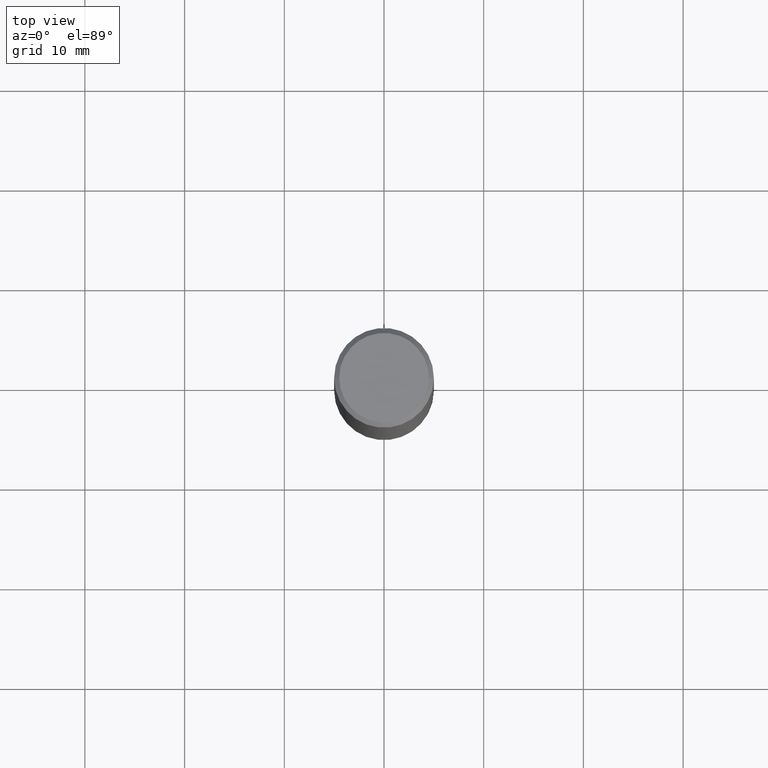
[diagram: clean part render]
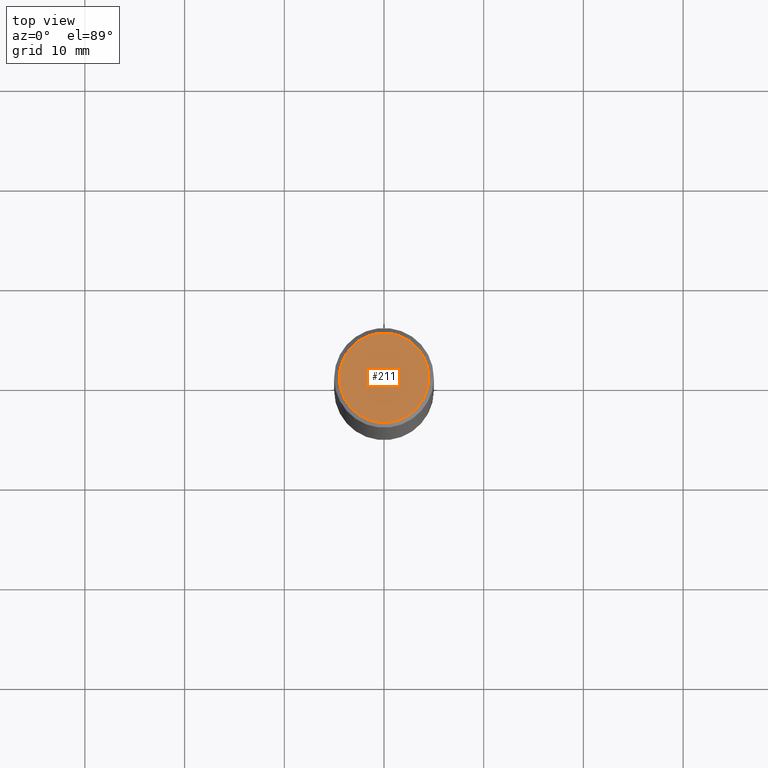
[diagram: same view with one face highlighted and labeled with its STEP entity id]
A machine part, top view. The second image highlights one B-rep face of the part: STEP entity #211.
In plain terms, the highlighted planar face has unit normal (0, -0, -1).
Its self-contained STEP definition (entity closure, byte-faithful):
#10 = ORIENTED_EDGE ( 'NONE', *, *, #32, .T. ) ;
#14 = CIRCLE ( 'NONE', #244, 0.1768499999999997019 ) ;
#25 = CARTESIAN_POINT ( 'NONE',  ( 0.1768499999999997019, -1.316798864272040366E-15, 8.537024980209745006E-18 ) ) ;
#32 = EDGE_CURVE ( 'NONE', #263, #168, #14, .T. ) ;
#42 = DIRECTION ( 'NONE',  ( 1.000000000000000000, -6.982962677686268288E-15, 4.875932113059886416E-29 ) ) ;
#70 = DIRECTION ( 'NONE',  ( -2.445468806185136597E-29, 3.491481338843145583E-15, 1.000000000000000000 ) ) ;
#75 = DIRECTION ( 'NONE',  ( 1.000000000000000000, -6.982962677686268288E-15, 4.875932113059886416E-29 ) ) ;
#101 = AXIS2_PLACEMENT_3D ( 'NONE', #223, #253, #330 ) ;
#106 = AXIS2_PLACEMENT_3D ( 'NONE', #364, #360, #75 ) ;
#108 = FACE_OUTER_BOUND ( 'NONE', #329, .T. ) ;
#118 = CIRCLE ( 'NONE', #106, 0.1768499999999997019 ) ;
#137 = PLANE ( 'NONE',  #101 ) ;
#168 = VERTEX_POINT ( 'NONE', #25 ) ;
#211 = ADVANCED_FACE ( 'NONE', ( #108 ), #137, .F. ) ;
#223 = CARTESIAN_POINT ( 'NONE',  ( 1.234936949548814026E-15, 0.1768499999999997019, -6.131999622843089528E-16 ) ) ;
#237 = ORIENTED_EDGE ( 'NONE', *, *, #287, .T. ) ;
#244 = AXIS2_PLACEMENT_3D ( 'NONE', #271, #70, #42 ) ;
#253 = DIRECTION ( 'NONE',  ( 2.438088387897960049E-29, -3.491481338843145188E-15, -1.000000000000000000 ) ) ;
#263 = VERTEX_POINT ( 'NONE', #363 ) ;
#271 = CARTESIAN_POINT ( 'NONE',  ( -2.087702828670439639E-46, 2.980686340760894400E-32, 8.537024980200822558E-18 ) ) ;
#287 = EDGE_CURVE ( 'NONE', #168, #263, #118, .T. ) ;
#329 = EDGE_LOOP ( 'NONE', ( #10, #237 ) ) ;
#330 = DIRECTION ( 'NONE',  ( -1.000000000000000000, 6.982962677686265922E-15, -4.876176775795935793E-29 ) ) ;
#360 = DIRECTION ( 'NONE',  ( -2.445468806185136597E-29, 3.491481338843145583E-15, 1.000000000000000000 ) ) ;
#363 = CARTESIAN_POINT ( 'NONE',  ( -0.1768499999999997019, 1.269851762937245478E-15, 8.537024980192063428E-18 ) ) ;
#364 = CARTESIAN_POINT ( 'NONE',  ( -2.087702828670439639E-46, 2.980686340760894400E-32, 8.537024980200822558E-18 ) ) ;